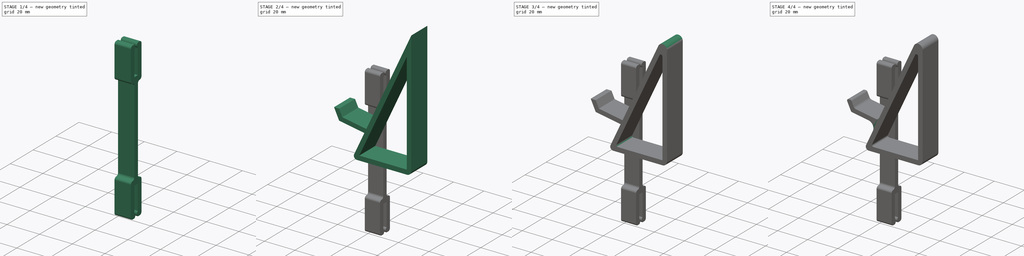
[diagram: build sequence overview — one tinted view per stage of 4, left to right]
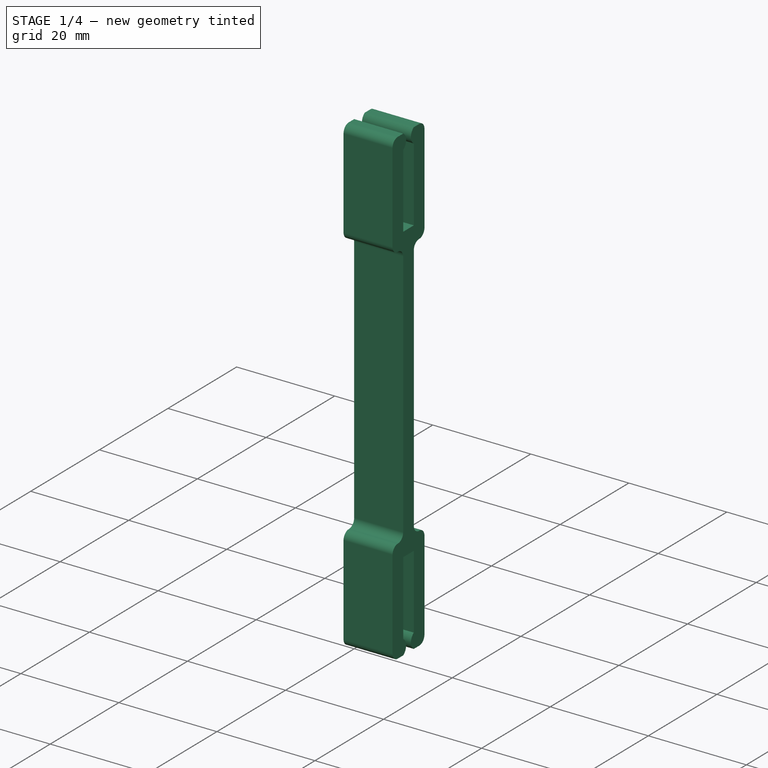
[diagram: stage 1 of 4 — iso view after this stage's code; geometry added in this stage tinted green]
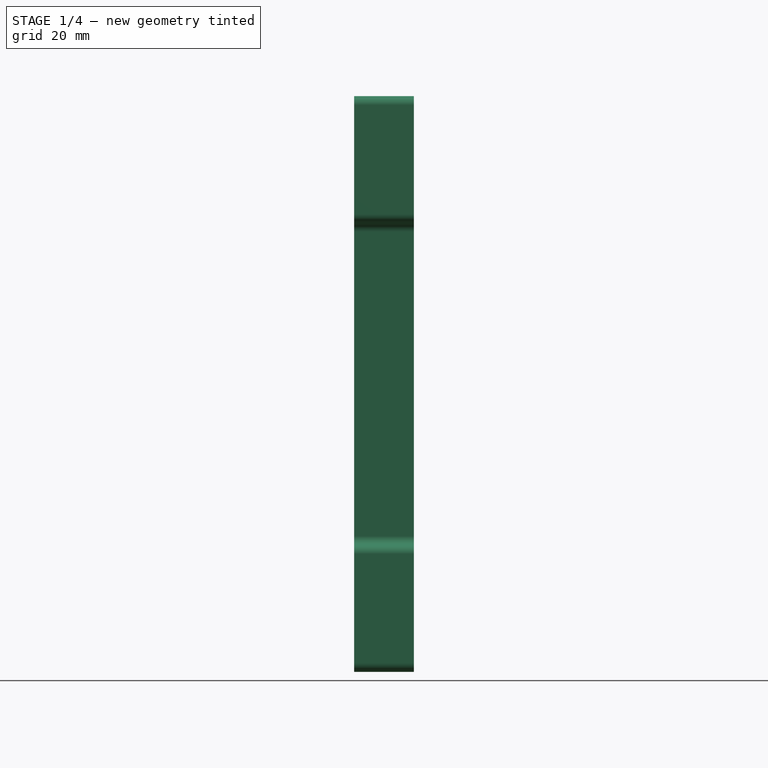
[diagram: stage 1 of 4 — front view after this stage's code; geometry added in this stage tinted green]
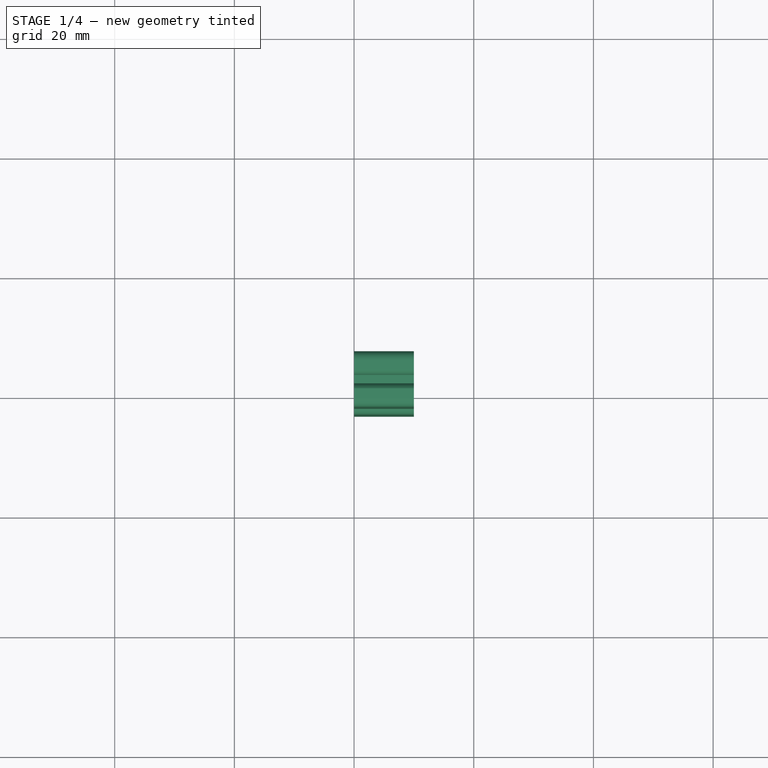
[diagram: stage 1 of 4 — top view after this stage's code; geometry added in this stage tinted green]
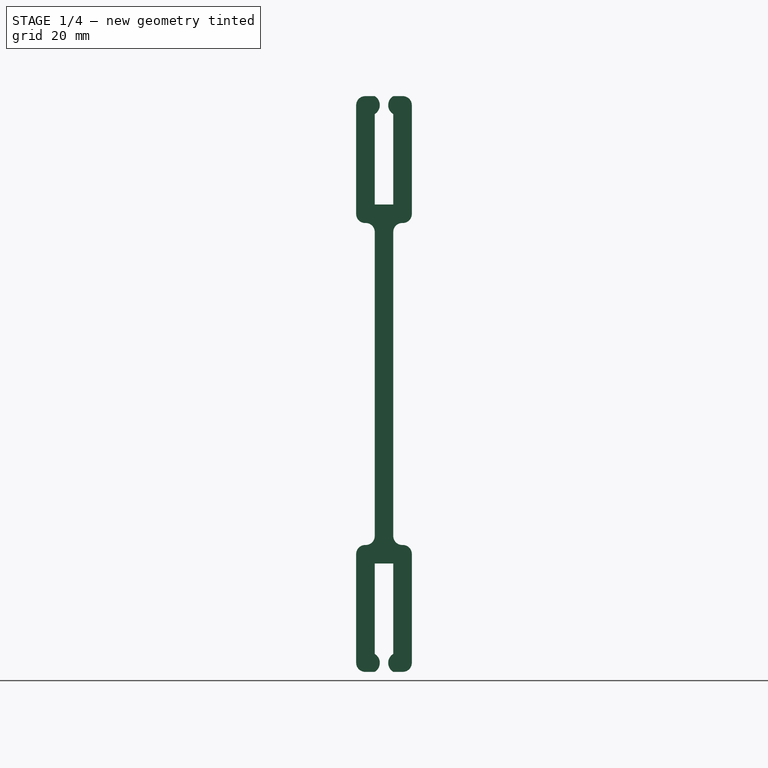
[diagram: stage 1 of 4 — right view after this stage's code; geometry added in this stage tinted green]
FCSTD DOCUMENT  (FreeCAD 0.20R29177 +233 (Git))
Label: stand
License: All rights reserved
LicenseURL: http://en.wikipedia.org/wiki/All_rights_reserved
objects: PartDesign::Fillet×9, Sketcher::SketchObject×2, PartDesign::Pad×2, PartDesign::Body×2, PartDesign::Mirrored×1
note: 27 computed .brp shape members not serialized (recipe doc carries the construction recipe); baked Part::Feature solids carry a one-line shape summary decoded from their .brp

FEATURE [PartDesign::Body] Body
  Group = -> [Sketch,Pad,Fillet,Fillet001,Fillet002,Fillet003,Fillet004,Fillet005,Fillet006,Fillet007]
  Origin = -> Origin
  Tip = -> Fillet007
FEATURE [Sketcher::SketchObject] Sketch001
  FullyConstrained = true
  MapMode = 5
  Placement = pos=(0,0,0) rot=(0.57735,0.57735,0.57735;2.0944rad)
  Support = -> [YZ_Plane001]
  sketch-geometry (19):
    g0: LineSegment StartX=0 StartY=0 StartZ=0 EndX=0 EndY=26.9 EndZ=0
    g1: LineSegment StartX=0 StartY=26.9 StartZ=0 EndX=-3.1 EndY=26.9 EndZ=0
    g2: LineSegment StartX=-3.1 StartY=26.9 StartZ=0 EndX=-3.1 EndY=48.1 EndZ=0
    g3: LineSegment StartX=3.1 StartY=26.9 StartZ=0 EndX=3.1 EndY=0 EndZ=0
    g4: LineSegment StartX=3.1 StartY=0 StartZ=0 EndX=0 EndY=0 EndZ=0
    g5: LineSegment StartX=3.1 StartY=26.9 StartZ=0 EndX=6.2 EndY=26.9 EndZ=0
    g6: LineSegment StartX=6.2 StartY=26.9 StartZ=0 EndX=6.2 EndY=48.1 EndZ=0
    g7: LineSegment StartX=6.2 StartY=48.1 StartZ=0 EndX=3.1 EndY=48.1 EndZ=0
    g8: LineSegment StartX=3.1 StartY=48.1 StartZ=0 EndX=3.1 EndY=30 EndZ=0
    g9: LineSegment StartX=3.1 StartY=30 StartZ=0 EndX=0 EndY=30 EndZ=0
    g10: LineSegment StartX=0 StartY=30 StartZ=0 EndX=4e-16 EndY=48.1 EndZ=0
    g11: LineSegment StartX=-3.1 StartY=48.1 StartZ=0 EndX=4e-16 EndY=48.1 EndZ=0
    g12: LineSegment StartX=3.1 StartY=30 StartZ=0 EndX=3.1 EndY=26.9 EndZ=0
    g13: LineSegment StartX=-4e-16 StartY=45.1 StartZ=0 EndX=3.1 EndY=45.1 EndZ=0
    g14: LineSegment StartX=0.848612 StartY=46.6 StartZ=0 EndX=2.25139 EndY=46.6 EndZ=0
    g15: ArcOfCircle CenterX=-0.901388 CenterY=46.6 CenterZ=0 NormalX=0 NormalY=0 NormalZ=1 AngleXU=0 Radius=1.75 StartAngle=5.25349 EndAngle=7.31288
    g16: ArcOfCircle CenterX=4.00139 CenterY=46.6 CenterZ=0 NormalX=0 NormalY=0 NormalZ=1 AngleXU=0 Radius=1.75 StartAngle=2.1119 EndAngle=4.17129
    g17: LineSegment StartX=-4e-16 StartY=45.1 StartZ=0 EndX=0 EndY=30 EndZ=0
    g18: LineSegment StartX=3.1 StartY=45.1 StartZ=0 EndX=3.1 EndY=30 EndZ=0
  constraints (52):
    c: Coincident(g0,g-1)
    c: PointOnObject(g0,g-2)
    c: Coincident(g1,g0)
    c: Horizontal(g1)
    c: Coincident(g2,g1)
    c: Vertical(g2)
    c: PointOnObject(g3,g-1)
    c: Vertical(g3)
    c: Coincident(g4,g3)
    c: Coincident(g4,g0)
    c: Coincident(g5,g3)
    c: Coincident(g6,g5)
    c: Vertical(g6)
    c: Horizontal(g7)
    c: Coincident(g8,g7)
    c: Coincident(g9,g8)
    c: PointOnObject(g9,g-2)
    c: Horizontal(g9)
    c: Coincident(g10,g9)
    c: PointOnObject(g10,g-2)
    c: Coincident(g11,g2)
    c: Coincident(g11,g10)
    c: Tangent(g7,g11)
    c: Tangent(g8,g3)
    c: Tangent(g5,g1)
    c: Equal(g5,g1)
    c: Equal(g9,g5)
    c: Coincident(g7,g6)
    c: DistanceY(g3,g8) = 30
    c: Coincident(g12,g8)
    c: Coincident(g12,g3)
    c: Equal(g12,g5)
    c: PointOnObject(g13,g10)
    c: PointOnObject(g13,g8)
    c: Horizontal(g13)
    c: DistanceX(g9,g9) = 3.1
    c: Horizontal(g14)
    c: DistanceY(g9,g13) = 15.1
    c: Coincident(g15,g11)
    c: Coincident(g15,g13)
    c: PointOnObject(g14,g15)
    c: Coincident(g16,g13)
    c: Coincident(g16,g7)
    c: PointOnObject(g14,g16)
    c: Equal(g16,g15)
    c: PointOnObject(g15,g14)
    c: DistanceY(g16,g7) = 3
    c: Radius(g16) = 1.75
    c: Coincident(g17,g15)
    c: Coincident(g17,g9)
    c: Coincident(g18,g16)
    c: Coincident(g18,g9)
FEATURE [PartDesign::Pad] Pad001
  Direction = (1,-2e-16,3e-16)
  Length = 10
  Length2 = 10
  Placement = pos=(0,0,0) rot=(0.57735,0.57735,0.57735;2.0944rad)
  Profile = -> Sketch001
  ReferenceAxis = -> Sketch001 [N_Axis]
  Type = 0
FEATURE [PartDesign::Fillet] Fillet008
  Base = -> Pad001 [Edge38,Edge1,Edge8,Edge11,Edge14,Edge35]
  BaseFeature = -> Pad001
  Placement = pos=(0,0,0) rot=(0.57735,0.57735,0.57735;2.0944rad)
  Radius = 1.5
  SupportTransform = false
  UseAllEdges = false
FEATURE [PartDesign::Mirrored] Mirrored
  BaseFeature = -> Fillet008
  MirrorPlane = -> XY_Plane001
  Originals = -> [Pad001,Fillet008]
  Placement = pos=(0,0,0) rot=(0.57735,0.57735,0.57735;2.0944rad)
FEATURE [PartDesign::Body] Body001
  Group = -> [Sketch001,Pad001,Fillet008,Mirrored]
  Origin = -> Origin001
  Tip = -> Mirrored
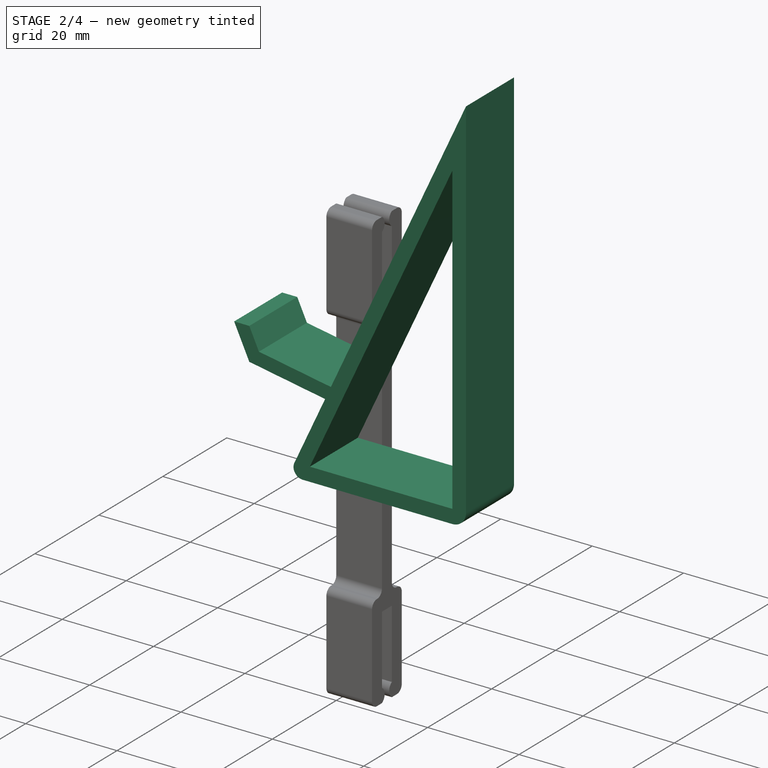
[diagram: stage 2 of 4 — iso view after this stage's code; geometry added in this stage tinted green]
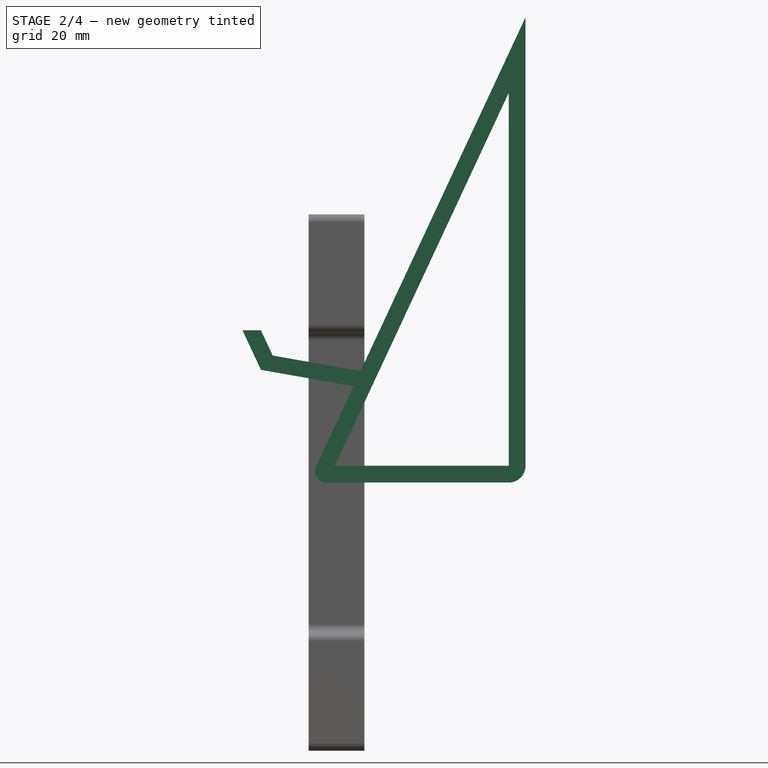
[diagram: stage 2 of 4 — front view after this stage's code; geometry added in this stage tinted green]
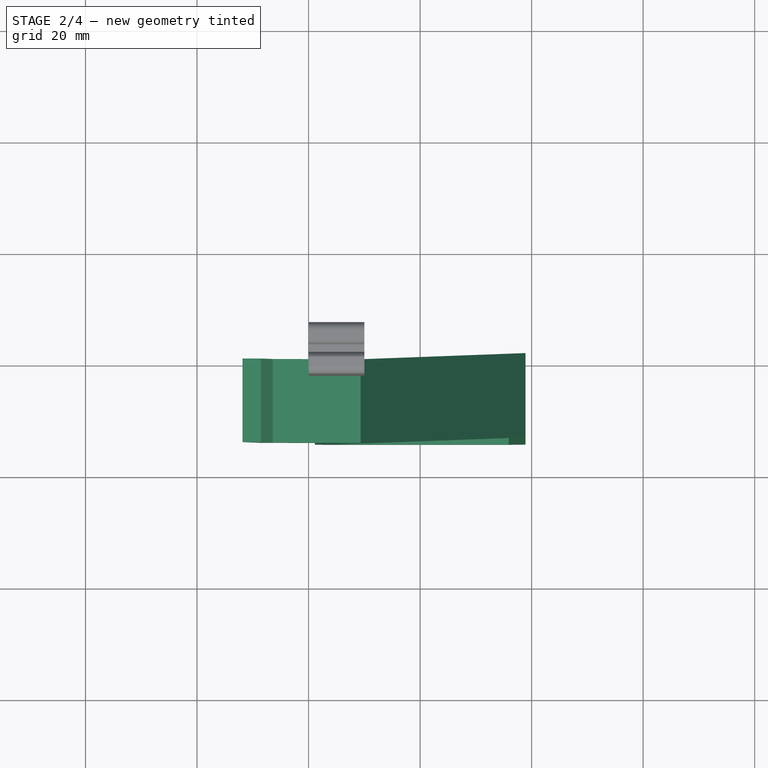
[diagram: stage 2 of 4 — top view after this stage's code; geometry added in this stage tinted green]
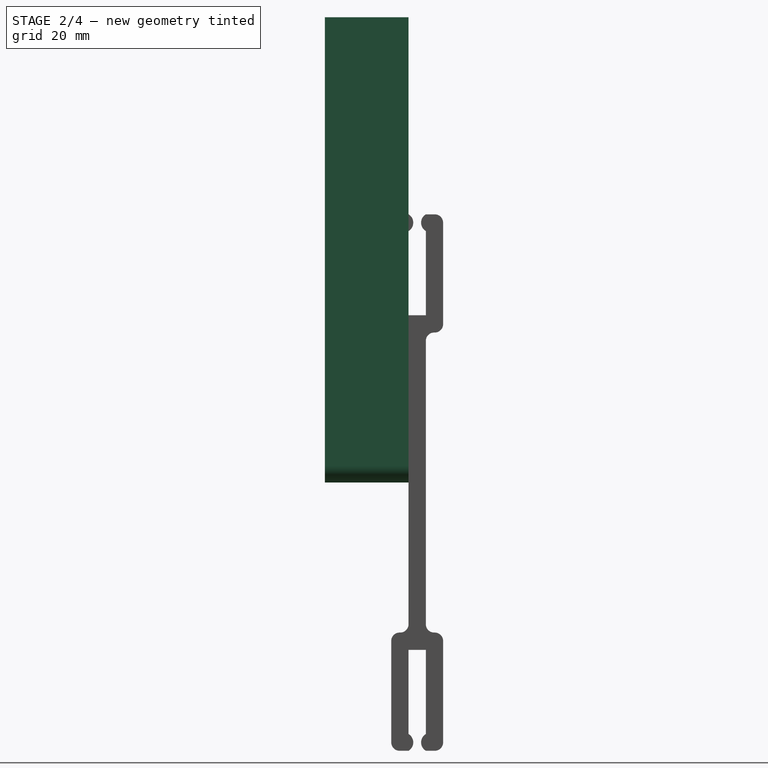
[diagram: stage 2 of 4 — right view after this stage's code; geometry added in this stage tinted green]
FEATURE [Sketcher::SketchObject] Sketch
  FullyConstrained = true
  MapMode = 5
  Placement = pos=(0,0,0) rot=(1,0,0;1.5708rad)
  Support = -> [XZ_Plane]
  sketch-geometry (17):
    g0: LineSegment StartX=38.9094 StartY=83.4415 StartZ=0 EndX=0 EndY=0 EndZ=0
    g1: LineSegment StartX=38.9094 StartY=83.4415 StartZ=0 EndX=38.9094 EndY=0 EndZ=0
    g2: LineSegment StartX=38.9094 StartY=0 StartZ=0 EndX=0 EndY=0 EndZ=0
    g3: LineSegment StartX=9.32615 StartY=20 StartZ=0 EndX=-6.43077 EndY=22.7784 EndZ=0
    g4: LineSegment StartX=-6.43077 StartY=22.7784 StartZ=0 EndX=-8.54386 EndY=27.3099 EndZ=0
    g5: LineSegment StartX=35.9094 StartY=69.9094 StartZ=0 EndX=4.70906 EndY=3 EndZ=0
    g6: LineSegment StartX=4.70906 StartY=3 StartZ=0 EndX=35.9094 EndY=3 EndZ=0
    g7: LineSegment StartX=35.9094 StartY=3 StartZ=0 EndX=35.9094 EndY=69.9094 EndZ=0
    g8: LineSegment StartX=20.3092 StartY=36.4547 StartZ=0 EndX=17.5903 EndY=37.7226 EndZ=0
    g9: LineSegment StartX=38.9094 StartY=36.4547 StartZ=0 EndX=35.9094 EndY=36.4547 EndZ=0
    g10: LineSegment StartX=20.3092 StartY=0 StartZ=0 EndX=20.3092 EndY=3 EndZ=0
    g11: LineSegment StartX=-8.54243 StartY=20.2082 StartZ=0 EndX=-11.854 EndY=27.3099 EndZ=0
    g12: LineSegment StartX=-11.854 StartY=27.3099 StartZ=0 EndX=-8.54386 EndY=27.3099 EndZ=0
    g13: LineSegment StartX=38.9094 StartY=83.4415 StartZ=0 EndX=9.32615 EndY=20 EndZ=0
    g14: LineSegment StartX=-8.54243 StartY=20.2082 StartZ=0 EndX=8.0583 EndY=17.2811 EndZ=0
    g15: LineSegment StartX=0 StartY=0 StartZ=0 EndX=8.0583 EndY=17.2811 EndZ=0
    g16: LineSegment StartX=-7.47929 StartY=25.0269 StartZ=0 EndX=-10.1982 EndY=23.7591 EndZ=0
  constraints (49):
    c: Coincident(g0,g-1)
    c: Coincident(g1,g0)
    c: Vertical(g1)
    c: Coincident(g2,g1)
    c: Horizontal(g2)
    c: Angle(g2,g0) = 1.13446
    c: Angle(g-1,g3) = 2.96706
    c: Distance(g3) = 16
    c: Coincident(g4,g3)
    c: Distance(g4) = 5
    c: Angle(g3,g4) = 2.18166
    c: Coincident(g6,g5)
    c: Horizontal(g6)
    c: Coincident(g7,g6)
    c: Coincident(g7,g5)
    c: Vertical(g7)
    c: Parallel(g5,g0)
    c: Symmetric(g5,g5,g8)
    c: Perpendicular(g5,g8)
    c: PointOnObject(g8,g0)
    c: Distance(g8) = 3
    c: PointOnObject(g9,g1)
    c: Perpendicular(g7,g9)
    c: Symmetric(g5,g6,g9)
    c: Equal(g8,g9)
    c: PointOnObject(g10,g2)
    c: Vertical(g10)
    c: Symmetric(g5,g6,g10)
    c: Equal(g10,g8)
    c: PointOnObject(g3,g0)
    c: Coincident(g12,g11)
    c: Coincident(g12,g4)
    c: Horizontal(g12)
    c: Parallel(g11,g4)
    c: Coincident(g13,g1)
    c: Coincident(g13,g3)
    c: Coincident(g14,g11)
    c: PointOnObject(g14,g0)
    c: Parallel(g14,g3)
    c: Distance(g1,g3) = 70
    c: Coincident(g15,g2)
    c: Coincident(g15,g14)
    c: Coincident(g2,g0)
    c: DistanceY(g2,g3) = 20
    c: Distance(g14,g3) = 3
    c: PointOnObject(g16,g4)
    c: Perpendicular(g11,g16)
    c: Symmetric(g11,g11,g16)
    c: Distance(g16) = 3
FEATURE [PartDesign::Pad] Pad
  Direction = (0,-1,2e-16)
  Length = 15
  Length2 = 10
  Placement = pos=(0,0,0) rot=(1,0,0;1.5708rad)
  Profile = -> Sketch
  ReferenceAxis = -> Sketch [N_Axis]
  Type = 0
FEATURE [PartDesign::Fillet] Fillet
  Base = -> Pad [Edge5]
  BaseFeature = -> Pad
  Placement = pos=(0,0,0) rot=(1,0,0;1.5708rad)
  Radius = 3
  SupportTransform = false
  UseAllEdges = false
FEATURE [PartDesign::Fillet] Fillet001
  Base = -> Fillet [Edge31]
  BaseFeature = -> Fillet
  Placement = pos=(0,0,0) rot=(1,0,0;1.5708rad)
  Radius = 2
  SupportTransform = false
  UseAllEdges = false
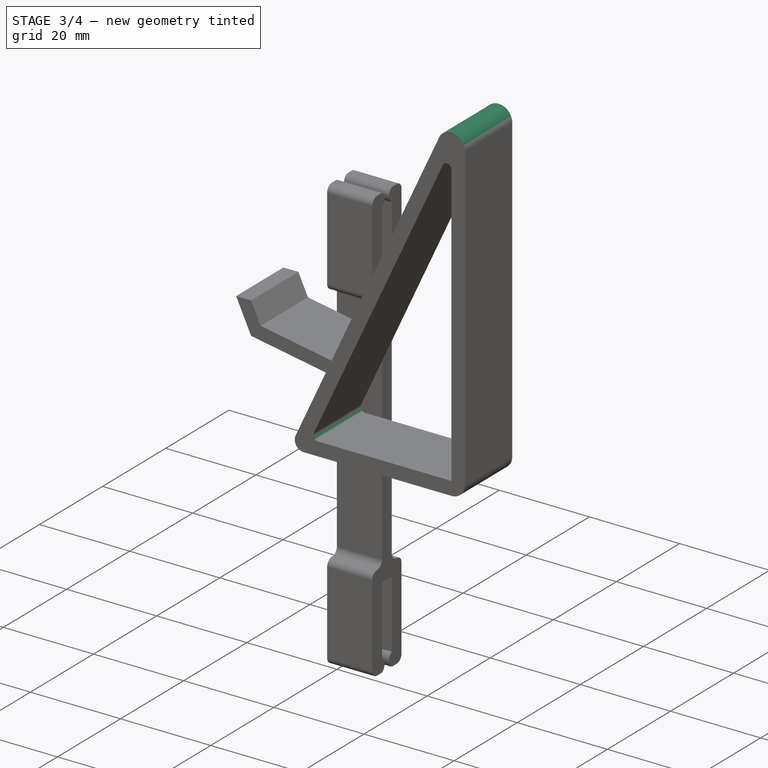
[diagram: stage 3 of 4 — iso view after this stage's code; geometry added in this stage tinted green]
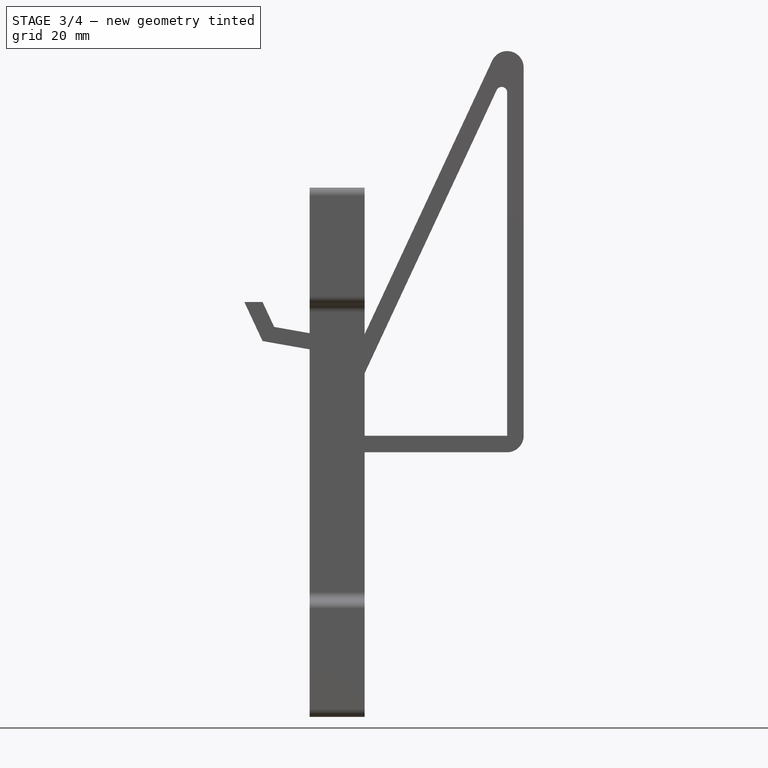
[diagram: stage 3 of 4 — front view after this stage's code; geometry added in this stage tinted green]
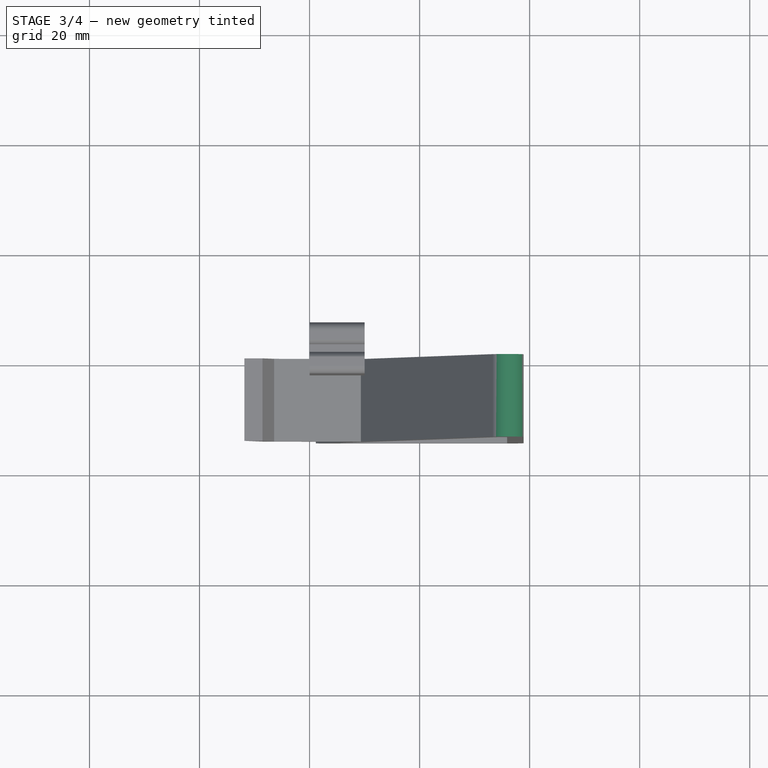
[diagram: stage 3 of 4 — top view after this stage's code; geometry added in this stage tinted green]
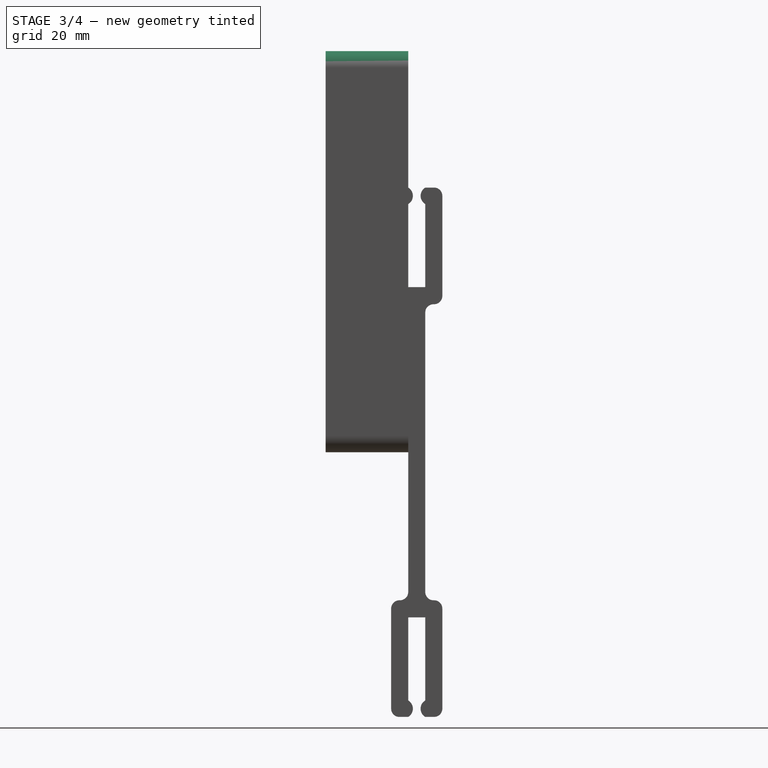
[diagram: stage 3 of 4 — right view after this stage's code; geometry added in this stage tinted green]
FEATURE [PartDesign::Fillet] Fillet002
  Base = -> Fillet001 [Edge24]
  BaseFeature = -> Fillet001
  Placement = pos=(0,0,0) rot=(1,0,0;1.5708rad)
  Radius = 3
  SupportTransform = false
  UseAllEdges = false
FEATURE [PartDesign::Fillet] Fillet003
  Base = -> Fillet002 [Edge40]
  BaseFeature = -> Fillet002
  Placement = pos=(0,0,0) rot=(1,0,0;1.5708rad)
  Radius = 1
  SupportTransform = false
  UseAllEdges = false
FEATURE [PartDesign::Fillet] Fillet004
  Base = -> Fillet003 [Edge18]
  BaseFeature = -> Fillet003
  Placement = pos=(0,0,0) rot=(1,0,0;1.5708rad)
  Radius = 1
  SupportTransform = false
  UseAllEdges = false
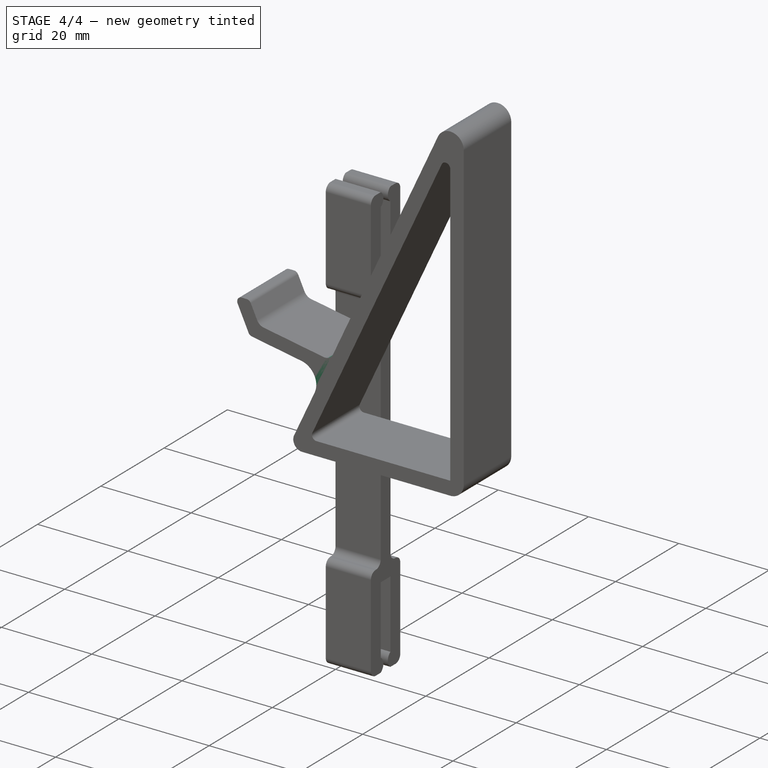
[diagram: stage 4 of 4 — iso view after this stage's code; geometry added in this stage tinted green]
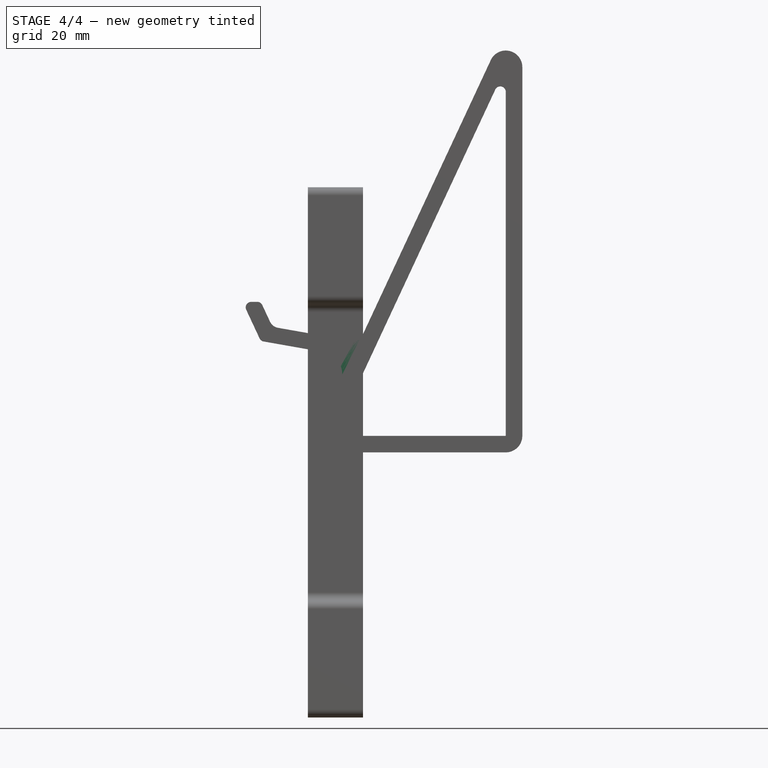
[diagram: stage 4 of 4 — front view after this stage's code; geometry added in this stage tinted green]
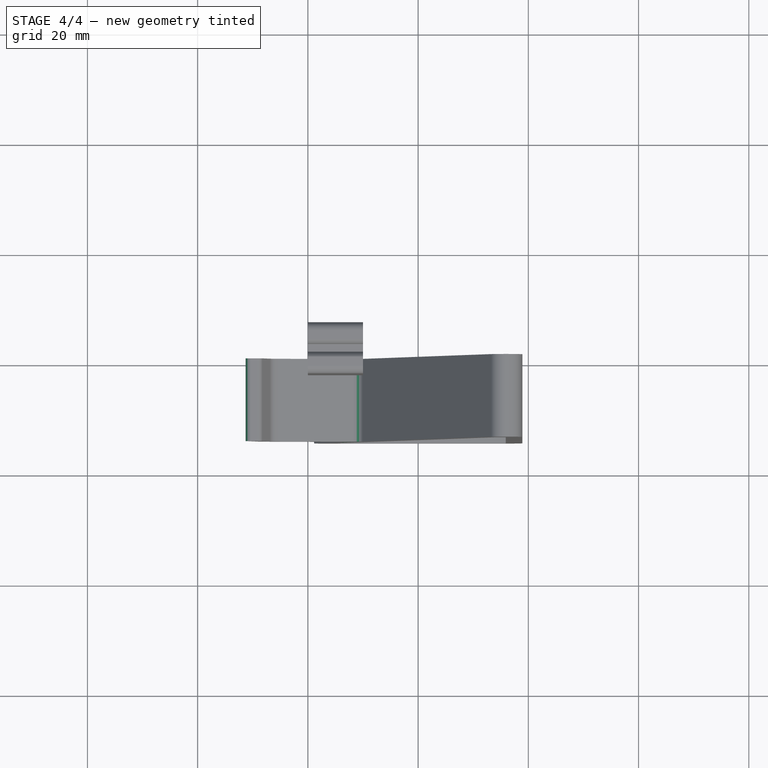
[diagram: stage 4 of 4 — top view after this stage's code; geometry added in this stage tinted green]
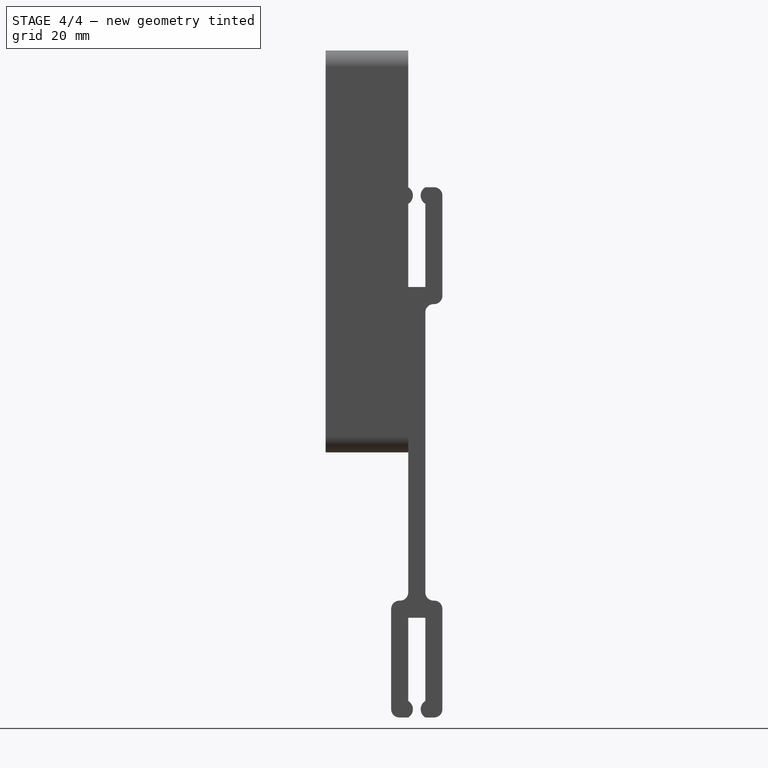
[diagram: stage 4 of 4 — right view after this stage's code; geometry added in this stage tinted green]
FEATURE [PartDesign::Fillet] Fillet005
  Base = -> Fillet004 [Edge45]
  BaseFeature = -> Fillet004
  Placement = pos=(0,0,0) rot=(1,0,0;1.5708rad)
  Radius = 4
  SupportTransform = false
  UseAllEdges = false
FEATURE [PartDesign::Fillet] Fillet006
  Base = -> Fillet005 [Edge38,Edge42]
  BaseFeature = -> Fillet005
  Placement = pos=(0,0,0) rot=(1,0,0;1.5708rad)
  Radius = 2
  SupportTransform = false
  UseAllEdges = false
FEATURE [PartDesign::Fillet] Fillet007
  Base = -> Fillet006 [Edge22,Edge26,Edge30]
  BaseFeature = -> Fillet006
  Placement = pos=(0,0,0) rot=(1,0,0;1.5708rad)
  Radius = 1
  SupportTransform = false
  UseAllEdges = false
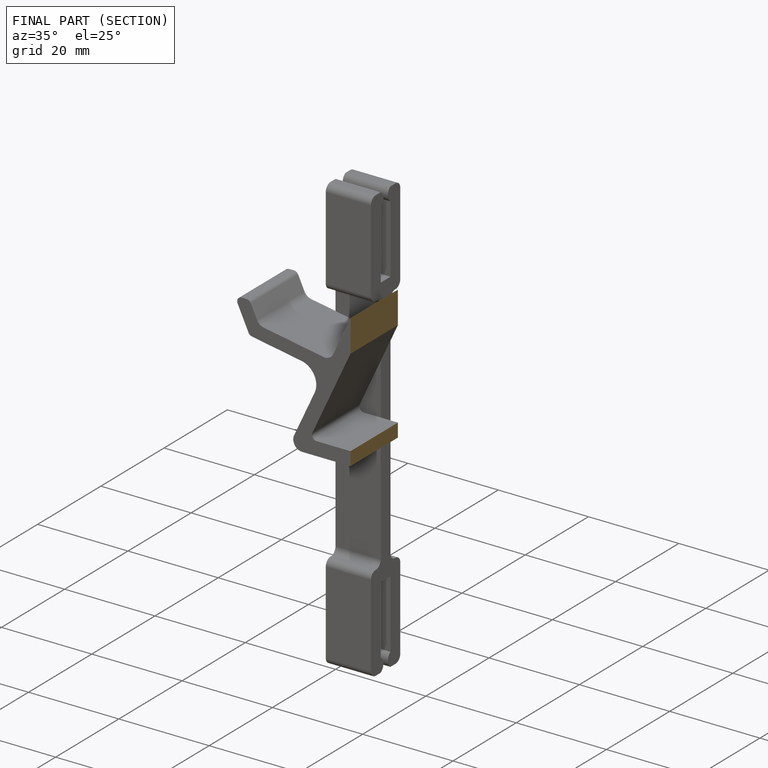
[diagram: finished part — half-section view (interior)]
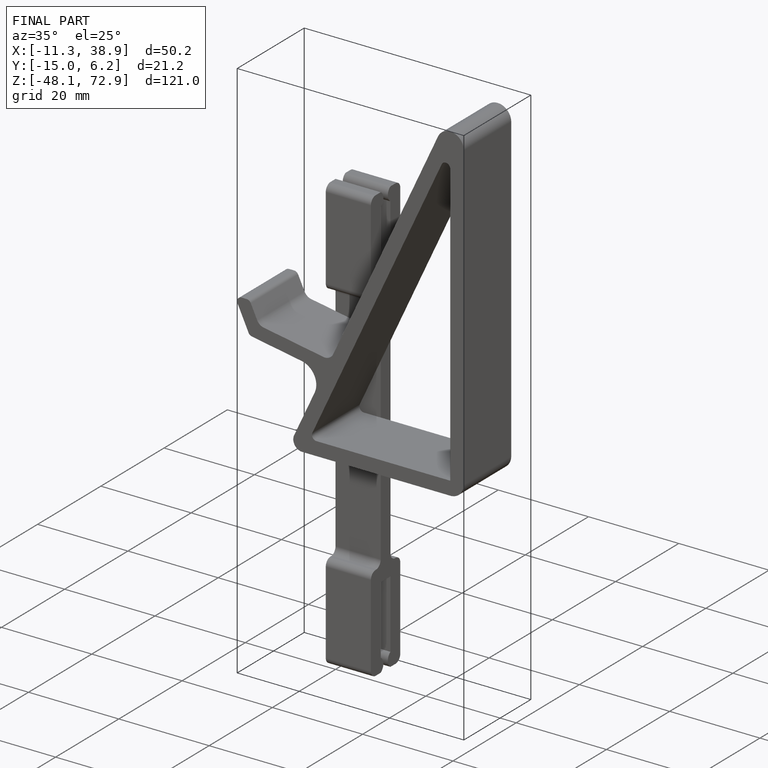
[diagram: finished part — iso view with bounding-box wireframe]
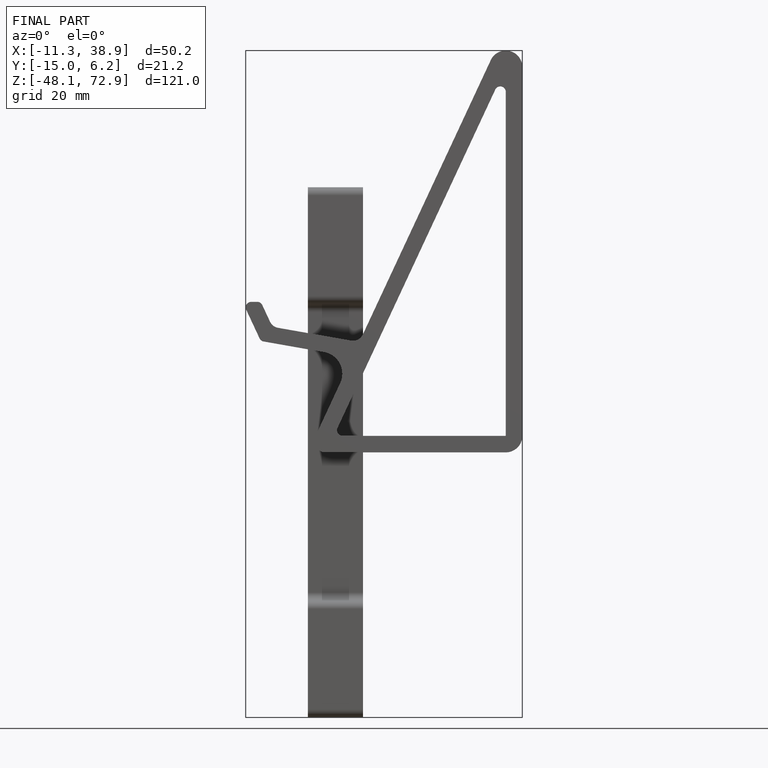
[diagram: finished part — front view with bounding-box wireframe]
